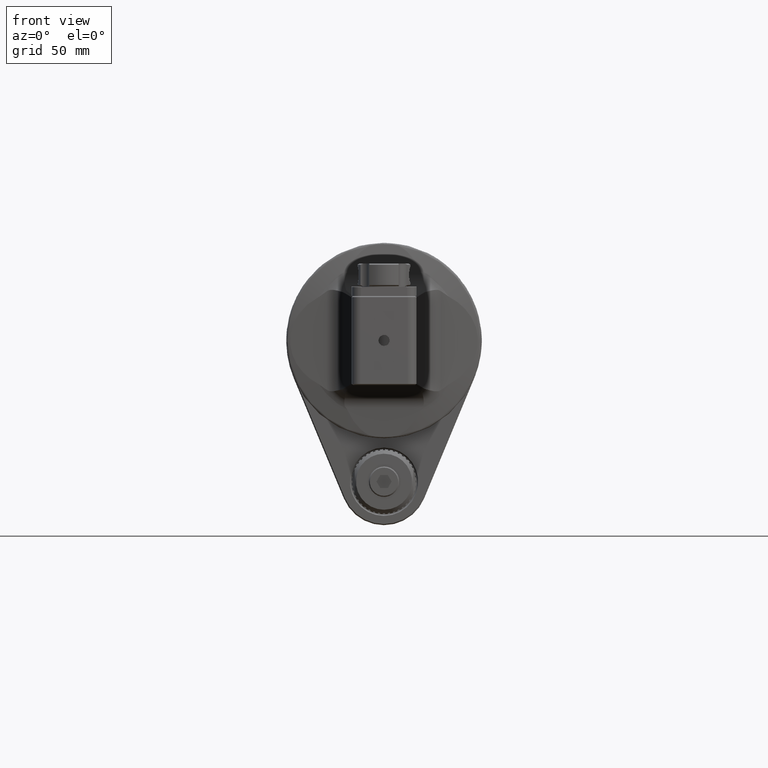
[diagram: clean part render]
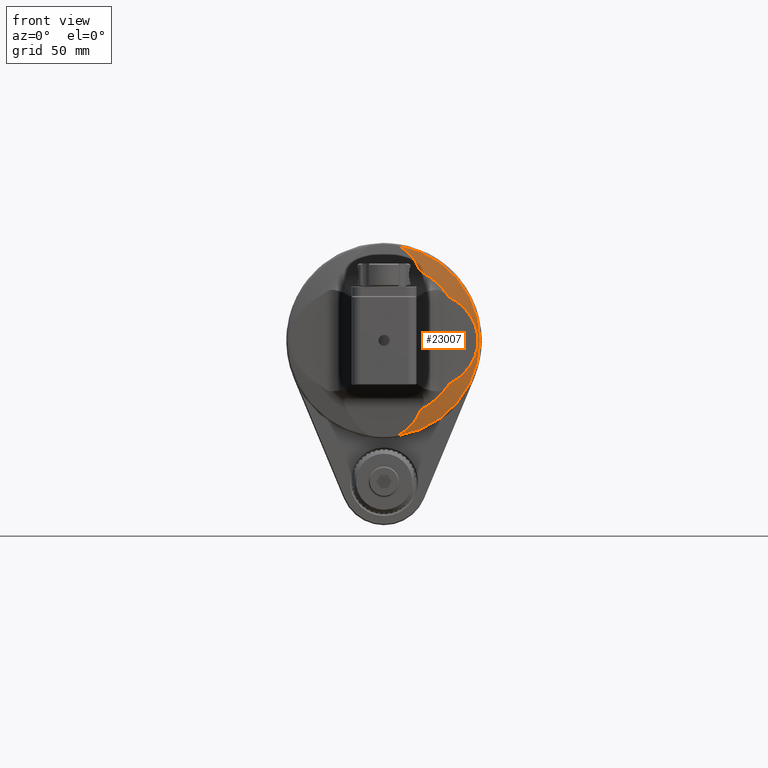
[diagram: same view with one face highlighted and labeled with its STEP entity id]
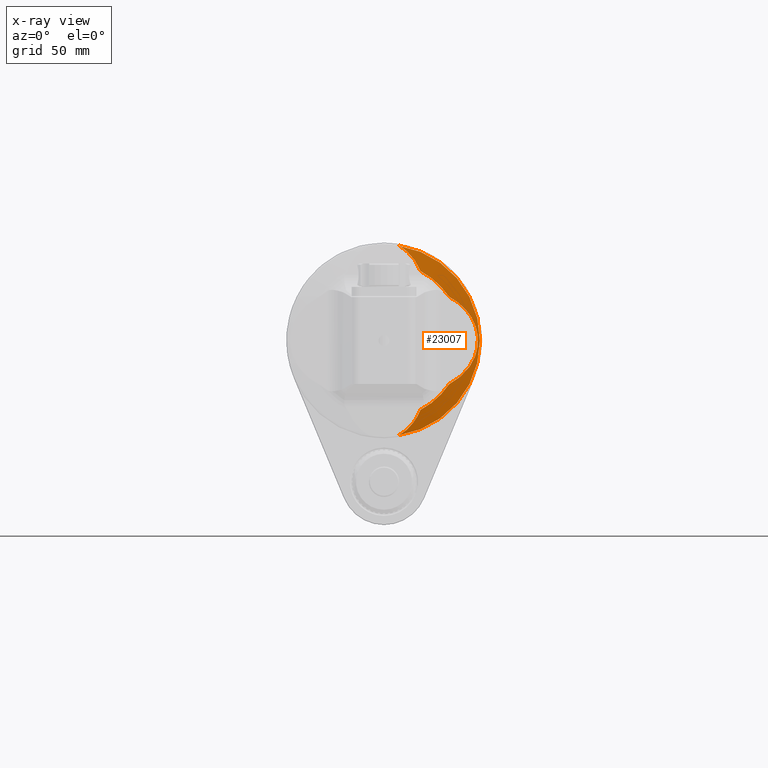
[diagram: x-ray of the same camera — body ghosted, the highlighted face saturated]
A machine part, front view. The second image highlights one B-rep face of the part: STEP entity #23007.
The next image is the same camera in x-ray: the body ghosted, the highlighted face saturated — about 0% of this face is hidden behind the body in this view.
In plain terms, the highlighted conical surface has half-angle 79.875 deg.
Its self-contained STEP definition (entity closure, byte-faithful):
#23=ELLIPSE('',#24678,27.0482605615585,19.4932377921873);
#26=ELLIPSE('',#24690,27.0482605615585,19.4932377921873);
#27=ELLIPSE('',#24710,28.2530290727382,23.6841930515216);
#569=CONICAL_SURFACE('',#24708,40.13996082534,1.39408747072482);
#5561=FACE_OUTER_BOUND('',#6971,.T.);
#6971=EDGE_LOOP('',(#16140,#16141,#16142,#16143,#16144,#16145));
#8527=CIRCLE('',#24660,36.10413101219);
#8538=CIRCLE('',#24688,44.17579063848);
#8547=CIRCLE('',#24709,36.10413101219);
#9604=VERTEX_POINT('',#35846);
#9605=VERTEX_POINT('',#35890);
#9630=VERTEX_POINT('',#36904);
#9631=VERTEX_POINT('',#36936);
#9636=VERTEX_POINT('',#36992);
#9651=VERTEX_POINT('',#37315);
#12064=EDGE_CURVE('',#9605,#9604,#8527,.T.);
#12099=EDGE_CURVE('',#9630,#9631,#23,.T.);
#12109=EDGE_CURVE('',#9636,#9630,#8538,.T.);
#12110=EDGE_CURVE('',#9605,#9636,#26,.T.);
#12133=EDGE_CURVE('',#9651,#9631,#8547,.T.);
#12134=EDGE_CURVE('',#9651,#9604,#27,.T.);
#16140=ORIENTED_EDGE('',*,*,#12133,.T.);
#16141=ORIENTED_EDGE('',*,*,#12099,.F.);
#16142=ORIENTED_EDGE('',*,*,#12109,.F.);
#16143=ORIENTED_EDGE('',*,*,#12110,.F.);
#16144=ORIENTED_EDGE('',*,*,#12064,.T.);
#16145=ORIENTED_EDGE('',*,*,#12134,.F.);
#23007=ADVANCED_FACE('',(#5561),#569,.T.);
#24660=AXIS2_PLACEMENT_3D('',#35891,#27723,#27724);
#24678=AXIS2_PLACEMENT_3D('',#36937,#27765,#27766);
#24688=AXIS2_PLACEMENT_3D('',#37012,#27785,#27786);
#24690=AXIS2_PLACEMENT_3D('',#37014,#27789,#27790);
#24708=AXIS2_PLACEMENT_3D('',#37314,#27833,#27834);
#24709=AXIS2_PLACEMENT_3D('',#37316,#27835,#27836);
#24710=AXIS2_PLACEMENT_3D('',#37317,#27837,#27838);
#27723=DIRECTION('center_axis',(0.,1.,0.));
#27724=DIRECTION('ref_axis',(0.467113337222199,0.,0.884197449775298));
#27765=DIRECTION('center_axis',(0.,-0.992546151641327,-0.121869343405103));
#27766=DIRECTION('ref_axis',(-4.51506049458621E-16,-0.121869343405104,0.992546151641327));
#27785=DIRECTION('center_axis',(0.,1.,0.));
#27786=DIRECTION('ref_axis',(0.152045707799498,0.,0.988373463190787));
#27789=DIRECTION('center_axis',(0.,-0.992546151641327,0.121869343405103));
#27790=DIRECTION('ref_axis',(-2.62694428775925E-15,-0.121869343405104,-0.992546151641328));
#27833=DIRECTION('center_axis',(0.,1.,0.));
#27834=DIRECTION('ref_axis',(0.,0.,1.));
#27835=DIRECTION('center_axis',(0.,1.,0.));
#27836=DIRECTION('ref_axis',(0.829982324767026,0.,-0.557789692065318));
#27837=DIRECTION('center_axis',(0.095845752520218,-0.995396198367179,0.));
#27838=DIRECTION('ref_axis',(-0.995396198367179,-0.0958457525202178,6.28731466218E-16));
#35846=CARTESIAN_POINT('',(29.9657905912,134.4114519665,20.13851211958));
#35890=CARTESIAN_POINT('',(16.86472112461,134.4114519665,31.92318056734));
#35891=CARTESIAN_POINT('Origin',(0.,134.4114519665,0.));
#36904=CARTESIAN_POINT('',(6.716739355231,135.8528197569,-43.66217918255));
#36936=CARTESIAN_POINT('',(16.86472112461,134.4114519665,-31.92318056734));
#36937=CARTESIAN_POINT('Origin',(3.33066907387547E-15,132.758329808776,
-18.4595810273648));
#36992=CARTESIAN_POINT('',(6.71673935523,135.8528197569,43.66217918255));
#37012=CARTESIAN_POINT('Origin',(0.,135.8528197569,0.));
#37014=CARTESIAN_POINT('Origin',(8.88178419700125E-15,132.758329808776,
18.4595810273648));
#37314=CARTESIAN_POINT('Origin',(0.,135.1321358617,0.));
#37315=CARTESIAN_POINT('',(29.96579059119,134.4114519665,-20.13851211958));
#37316=CARTESIAN_POINT('Origin',(0.,134.4114519665,0.));
#37317=CARTESIAN_POINT('Origin',(15.164423861729,132.98624245206,0.));